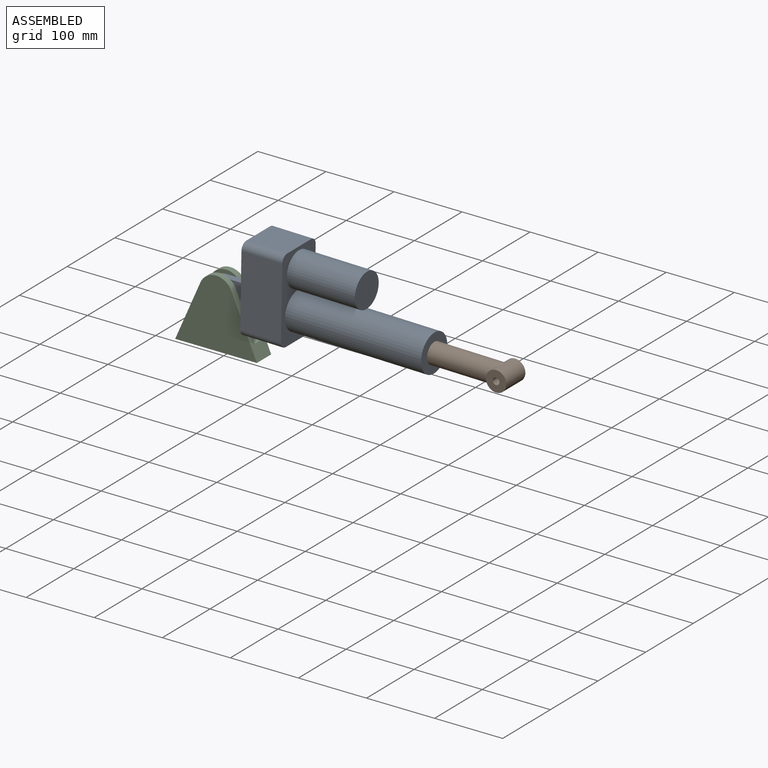
[diagram: assembled view]
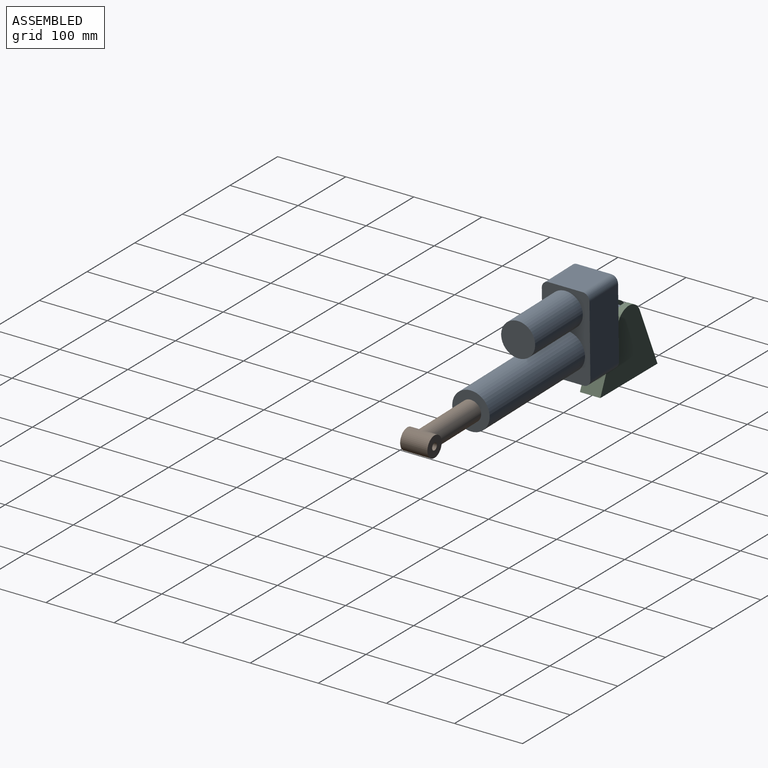
[diagram: assembled view, second angle]
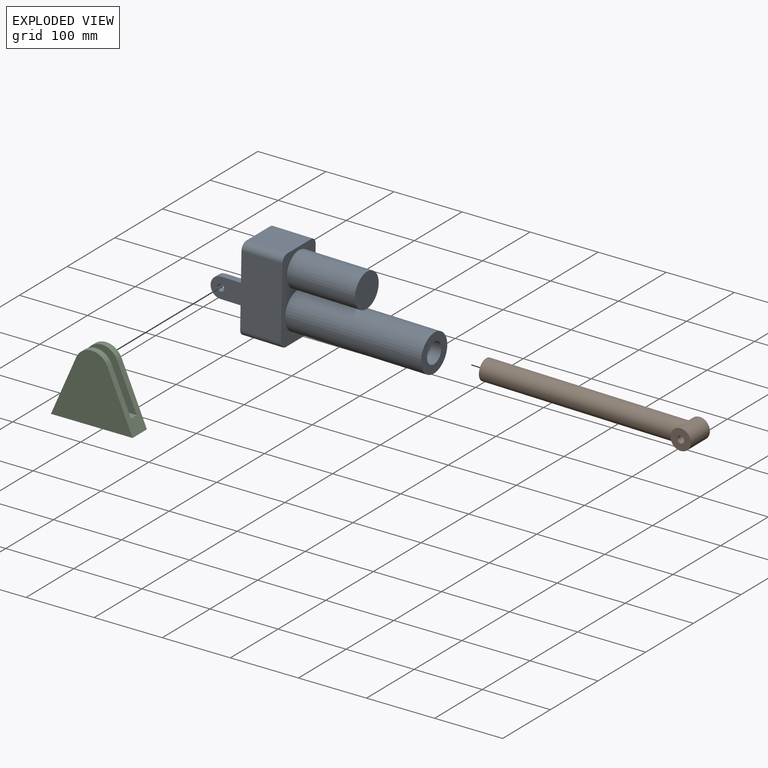
[diagram: exploded view]
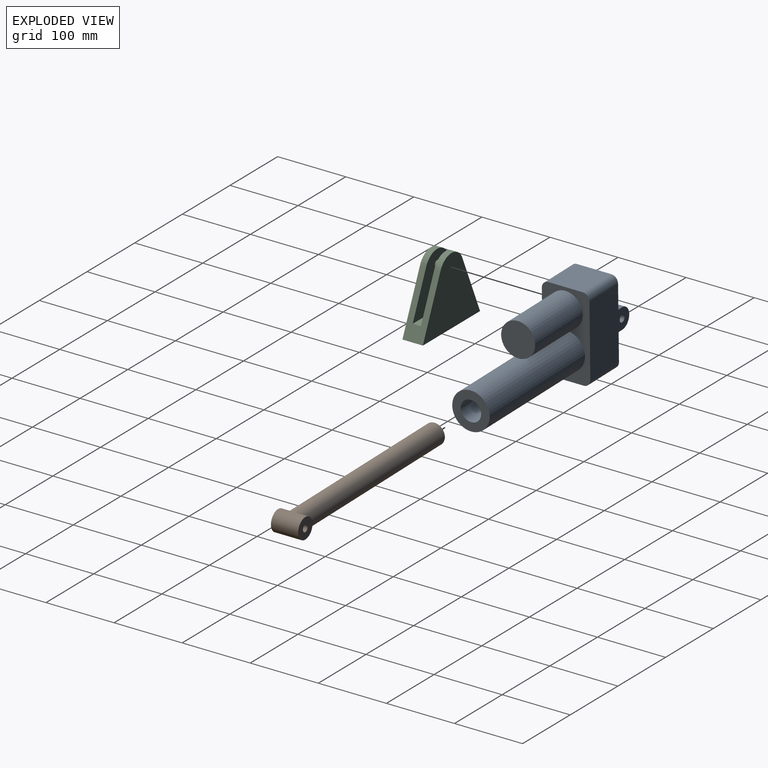
[diagram: exploded view, second angle]
ASSEMBLY  parts=3 mates=2
PART A: 22 faces, bbox 325x70x125 mm
  f0: plane 60x50mm, normal (0,0,1), area 3000mm2, adj f1,f7,f8,f9
  f1: cylinder r=10mm len=60mm, axis (1,0,0), area 942.5mm2, adj f0,f2,f8,f9
  f2: plane 105x60mm, normal (0,-1,0), area 6300mm2, adj f1,f3,f8,f9
  f3: cylinder r=10mm len=60mm, axis (1,0,0), area 942.5mm2, adj f2,f4,f8,f9
  f4: plane 60x50mm, normal (0,0,-1), area 3000mm2, adj f3,f5,f8,f9
  f5: cylinder r=10mm len=60mm, axis (1,0,0), area 942.5mm2, adj f4,f6,f8,f9
  f6: plane 105x60mm, normal (0,1,0), area 6300mm2, adj f5,f7,f8,f9
  f7: cylinder r=10mm len=60mm, axis (1,0,0), area 942.5mm2, adj f0,f6,f8,f9
  f8: plane 125x70mm, normal (-1,0,0), area 8364.2mm2, adj f0,f1,f2,f3,f4,f5,f6,f7
  f9: plane 125x70mm, normal (1,0,0), area 4324.8mm2, adj f0,f1,f2,f3,f4,f5,f6,f7
  f10: cylinder r=15mm len=200mm, axis (-1,0,0), area 18849.6mm2, adj f12,f13
  f11: cylinder r=27.5mm len=200mm, axis (-1,0,0), area 34557.5mm2, adj f9,f12
  f12: plane 55x55mm, normal (1,0,0), area 1669mm2, adj f10,f11
  f13: plane 30x30mm, normal (1,0,0), area 706.9mm2, adj f10
  f14: cylinder r=25mm len=100mm, axis (-1,0,0), area 15708mm2, adj f9,f15
  f15: plane 50x50mm, normal (1,0,0), area 1963.5mm2, adj f14
  f16: plane 50x10mm, normal (0,0,1), area 500mm2, adj f8,f17,f19,f21
  f17: plane 65x30mm, normal (0,1,0), area 1774.9mm2, adj f8,f16,f18,f20,f21
  f18: plane 50x10mm, normal (0,0,-1), area 500mm2, adj f8,f17,f19,f21
  f19: plane 65x30mm, normal (0,-1,0), area 1774.9mm2, adj f8,f16,f18,f20,f21
  f20: cylinder r=5mm len=10mm, axis (0,-1,0), area 314.2mm2, adj f17,f19
  f21: cylinder r=15mm len=30mm, axis (0,-1,0), area 471.2mm2, adj f16,f17,f18,f19
PART B: 6 faces, bbox 315x40x30 mm
  f0: cylinder r=15mm len=300mm, axis (1,0,0), area 27374.3mm2, adj f1,f2
  f1: plane 30x30mm, normal (-1,0,0), area 706.9mm2, adj f0
  f2: cylinder r=15mm len=40mm, axis (0,1,0), area 2869.9mm2, adj f0,f3,f4
  f3: plane 30x30mm, normal (0,-1,0), area 628.3mm2, adj f2,f5
  f4: plane 30x30mm, normal (0,1,0), area 628.3mm2, adj f2,f5
  f5: cylinder r=5mm len=40mm, axis (0,-1,0), area 1256.6mm2, adj f3,f4
PART C: 11 faces, bbox 120x30x100 mm
  f0: cylinder r=25mm len=45.83mm, axis (0,1,0), area 521.7mm2, adj f1,f2,f6,f7
  f1: plane 85x37.09mm, normal (-0.92,0,0.4), area 1931.1mm2, adj f0,f3,f4,f5,f6,f7,f8,f9
  f2: plane 85x37.09mm, normal (0.92,0,0.4), area 1931.1mm2, adj f0,f3,f4,f5,f6,f7,f8,f9
  f3: cylinder r=25mm len=45.83mm, axis (0,1,0), area 521.7mm2, adj f1,f2,f5,f8
  f4: plane 120x30mm, normal (0,0,-1), area 3600mm2, adj f1,f2,f5,f6
  f5: plane 120x100mm, normal (0,-1,0), area 7543mm2, adj f1,f2,f3,f4
  f6: plane 120x100mm, normal (0,1,0), area 7543mm2, adj f0,f1,f2,f4
  f7: plane 102.55x80mm, normal (0,-1,0), area 5239mm2, adj f0,f1,f2,f9,f10
  f8: plane 102.55x80mm, normal (0,1,0), area 5239mm2, adj f1,f2,f3,f9,f10
  f9: plane 102.55x12mm, normal (0,0,1), area 1230.6mm2, adj f1,f2,f7,f8
  f10: cylinder r=5mm len=12mm, axis (0,-1,0), area 377mm2, adj f7,f8
PLACE A rot(axis=(0,1,0),1deg) t=(4.28,-92.86,40.85)mm
PLACE B rot(axis=(0,1,0),1deg) t=(309.23,-92.86,35.33)mm
PLACE C t=(-105.7,-92.86,42.84)mm fixed
MATE revolute A.f20 <-> C.f10  axis (0,-1,0) through (-105.7,-92.86,42.84)mm
MATE slider B.f0 <-> A.f11  axis (1,0,-0.02) through (9.28,-92.86,40.76)mm
